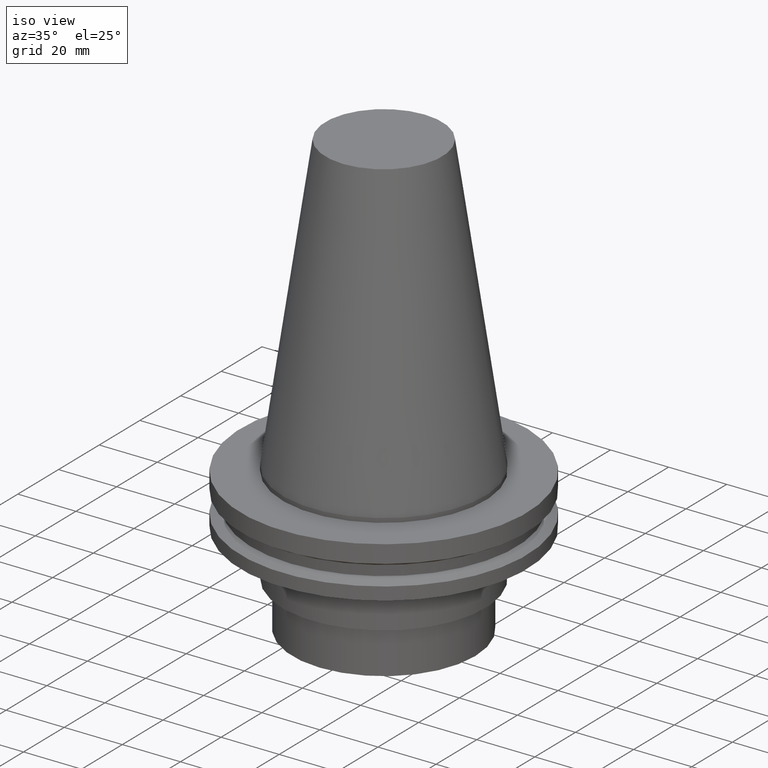
[diagram: clean part render]
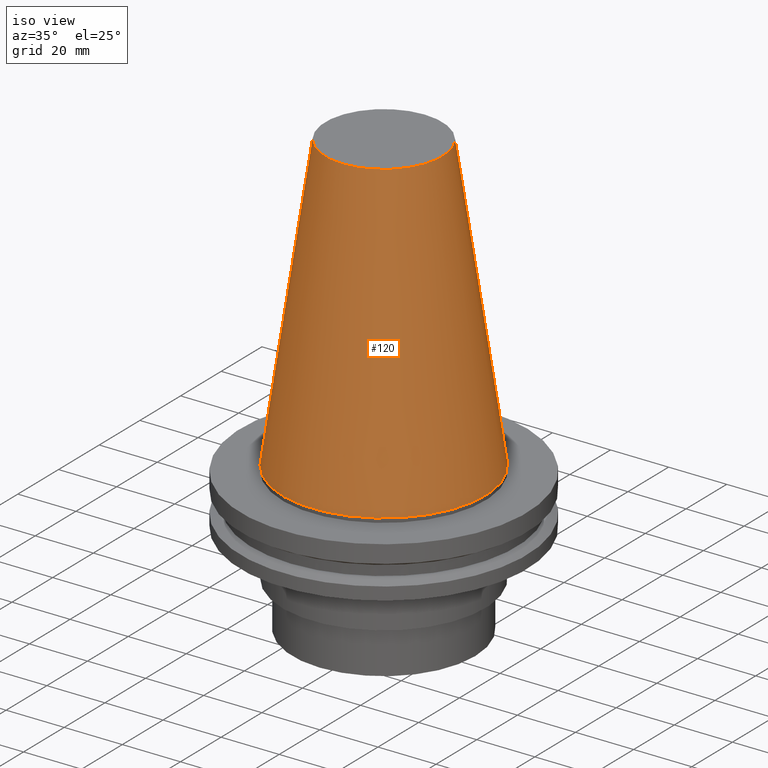
[diagram: tour spotlight — one face highlighted and labeled with its STEP entity id]
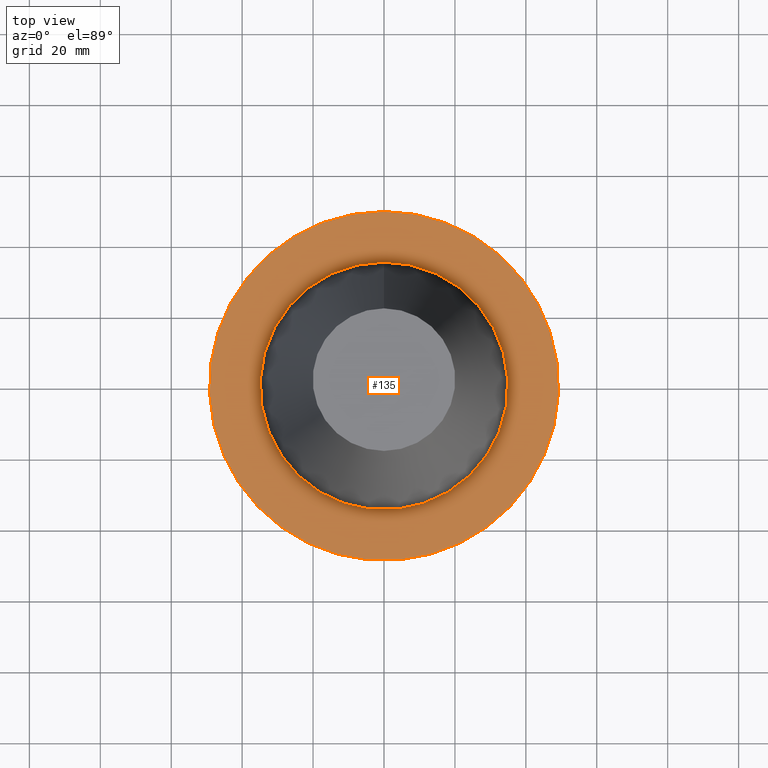
[diagram: tour spotlight — one face highlighted and labeled with its STEP entity id]
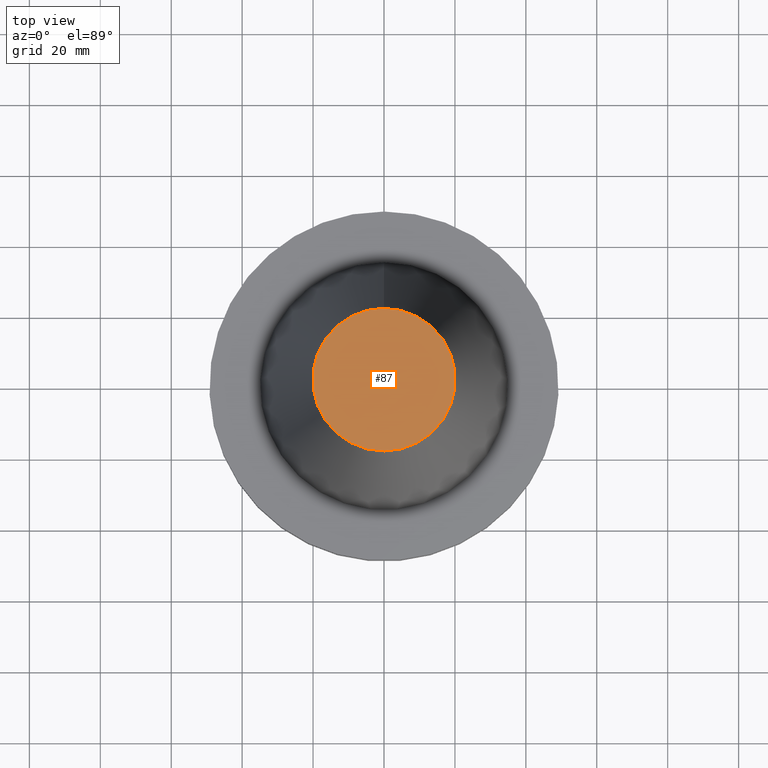
[diagram: tour spotlight — one face highlighted and labeled with its STEP entity id]
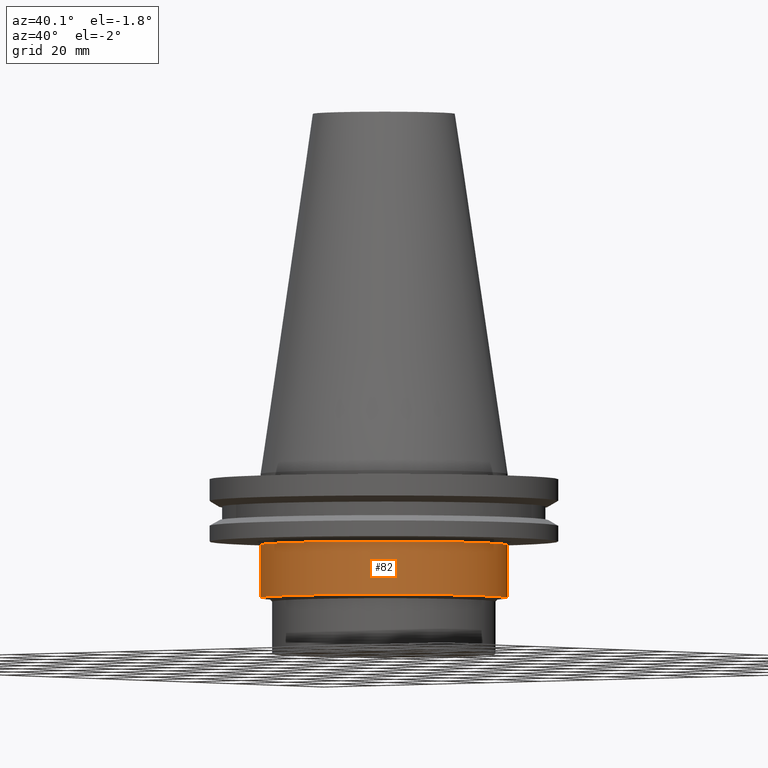
[diagram: tour spotlight — one face highlighted and labeled with its STEP entity id]
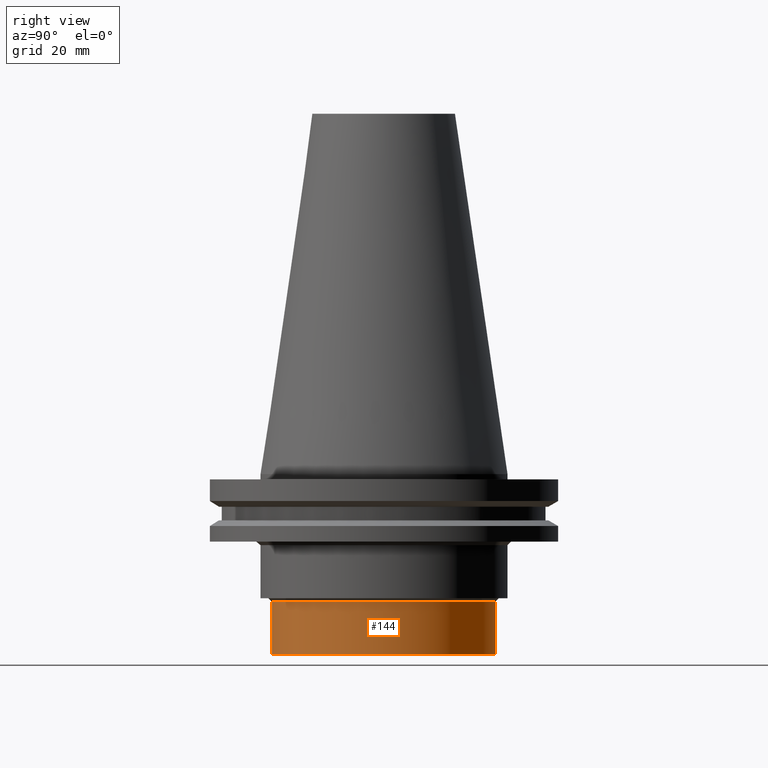
[diagram: tour spotlight — one face highlighted and labeled with its STEP entity id]
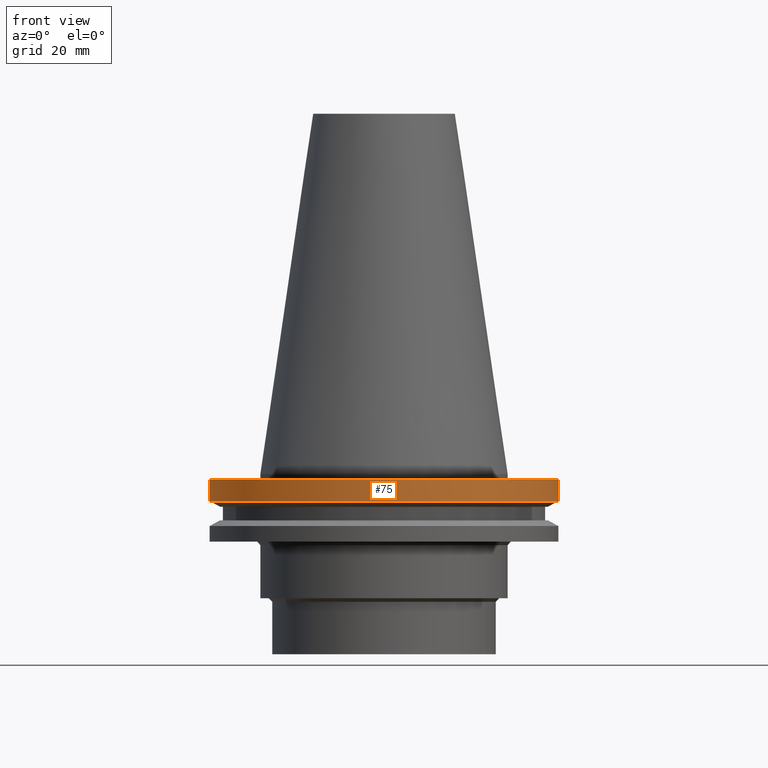
[diagram: tour spotlight — one face highlighted and labeled with its STEP entity id]
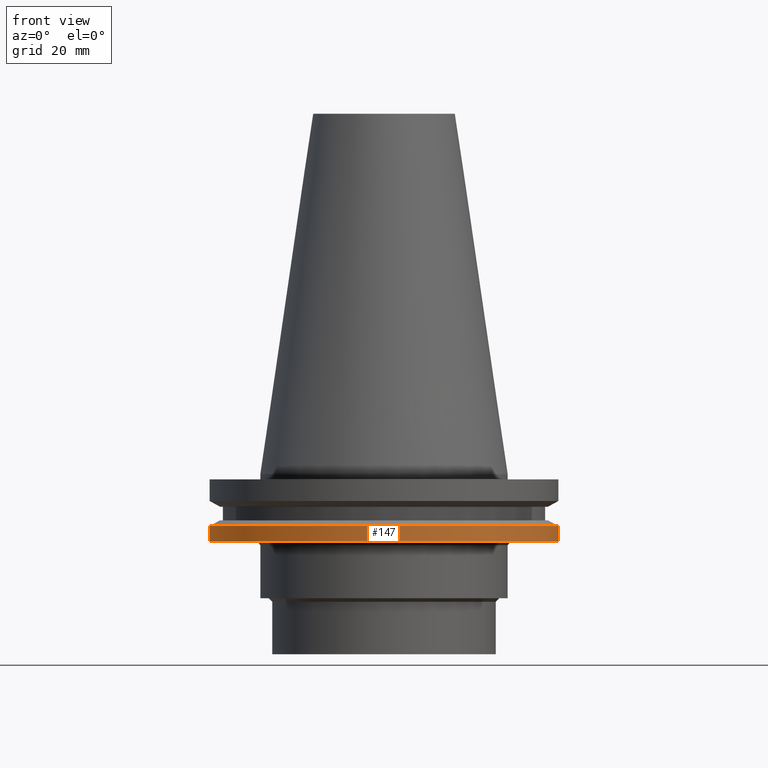
[diagram: tour spotlight — one face highlighted and labeled with its STEP entity id]
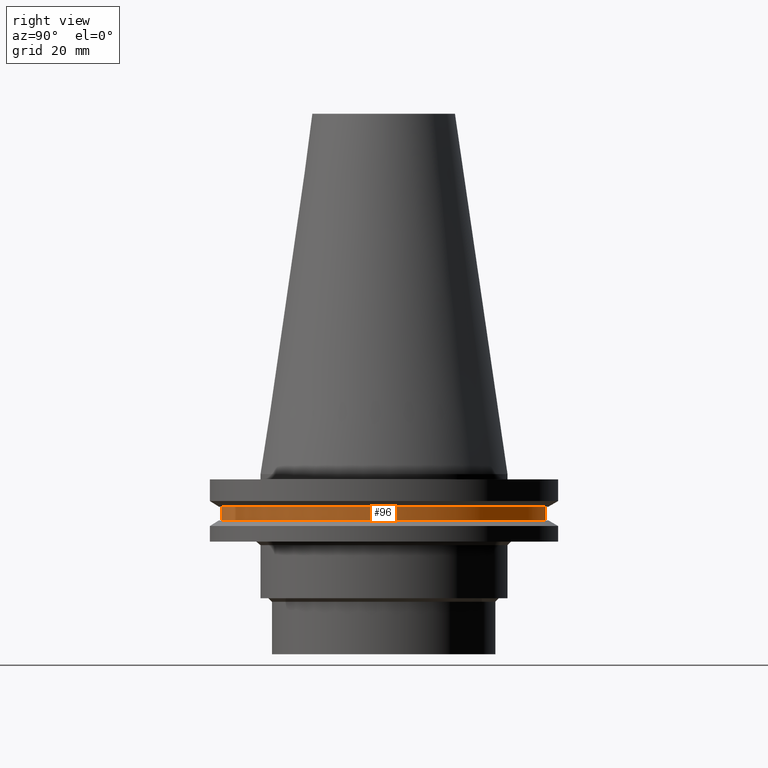
[diagram: tour spotlight — one face highlighted and labeled with its STEP entity id]
A machine part: a face-by-face anatomy tour. The part has 18 B-rep faces; the first image is the clean iso view, then the 8 largest visible faces are spotlighted one at a time (largest first), each with its STEP entity span.

Face 1 — iso view, entity #120. In plain terms, the highlighted conical surface has half-angle 8.297 deg.
Definition (entity closure, byte-faithful):
#72=EDGE_CURVE('Unnamed[1]',#186,#186,#187,.T.);
#120=ADVANCED_FACE('Unnamed[1]',(#260,#261),#262,.T.);
#149=EDGE_CURVE('Unnamed[1]',#306,#306,#307,.T.);
#186=VERTEX_POINT('',#340);
#187=CIRCLE('',#341,34.925);
#260=FACE_BOUND('',#433,.T.);
#261=FACE_BOUND('',#434,.T.);
#262=CONICAL_SURFACE('',#435,27.5166666666666,0.144812498238938);
#306=VERTEX_POINT('',#489);
#307=CIRCLE('',#490,20.1083333333333);
#340=CARTESIAN_POINT('',(4.82986938111671E-029,34.925,-7.9153078510529E-013));
#341=AXIS2_PLACEMENT_3D('',#513,#514,#515);
#433=EDGE_LOOP('',(#596));
#434=EDGE_LOOP('',(#597));
#435=AXIS2_PLACEMENT_3D('',#598,#599,#600);
#489=CARTESIAN_POINT('',(-6.22120573966855E-015,20.1083333333332,101.6));
#490=AXIS2_PLACEMENT_3D('',#647,#648,#649);
#513=CARTESIAN_POINT('',(5.04695054463486E-029,2.84372472727522E-014,-8.24229573481716E-013));
#514=DIRECTION('',(6.12323399573677E-017,9.31673031619414E-016,-1.0));
#515=DIRECTION('',(-6.18756725319993E-032,1.0,9.31673031619414E-016));
#596=ORIENTED_EDGE('',*,*,#72,.F.);
#597=ORIENTED_EDGE('',*,*,#149,.T.);
#598=CARTESIAN_POINT('',(-3.11060286983425E-015,-1.88917427335138E-014,50.7999999999996));
#599=DIRECTION('',(6.12323399573677E-017,9.31673031619389E-016,-1.0));
#600=DIRECTION('',(-6.18756725319968E-032,1.0,9.31673031619389E-016));
#647=CARTESIAN_POINT('',(-6.22120573966855E-015,-6.62207327397798E-014,101.6));
#648=DIRECTION('',(6.12323399573677E-017,9.31673031619385E-016,-1.0));
#649=DIRECTION('',(-6.18756725319991E-032,1.0,9.31673031619385E-016));

Face 2 — top view, entity #135. In plain terms, the highlighted planar face has unit normal (-0, -0, 1).
Definition (entity closure, byte-faithful):
#109=EDGE_CURVE('Unnamed[1]',#244,#244,#245,.T.);
#117=EDGE_CURVE('Unnamed[1]',#256,#256,#257,.T.);
#135=ADVANCED_FACE('Unnamed[1]',(#284,#285),#286,.T.);
#244=VERTEX_POINT('',#413);
#245=CIRCLE('',#414,34.9249999999999);
#256=VERTEX_POINT('',#428);
#257=CIRCLE('',#429,49.2124999999999);
#284=FACE_OUTER_BOUND('',#463,.T.);
#285=FACE_BOUND('',#464,.T.);
#286=PLANE('',#465);
#413=CARTESIAN_POINT('',(9.18485099360509E-017,34.925,-1.49999999999999));
#414=AXIS2_PLACEMENT_3D('',#578,#579,#580);
#428=CARTESIAN_POINT('',(9.18485099360508E-017,49.2124999999999,-1.49999999999999));
#429=AXIS2_PLACEMENT_3D('',#592,#593,#594);
#463=EDGE_LOOP('',(#623));
#464=EDGE_LOOP('',(#624));
#465=AXIS2_PLACEMENT_3D('',#625,#626,#627);
#578=CARTESIAN_POINT('',(9.18485099360532E-017,2.98347568201806E-014,-1.50000000000003));
#579=DIRECTION('',(6.12323399573677E-017,9.31673031619392E-016,-1.0));
#580=DIRECTION('',(-6.18756725319994E-032,1.0,9.31673031619392E-016));
#592=CARTESIAN_POINT('',(9.18485099360541E-017,2.98347568201806E-014,-1.50000000000004));
#593=DIRECTION('',(6.12323399573677E-017,9.31673031619397E-016,-1.0));
#594=DIRECTION('',(-6.18756725319978E-032,1.0,9.31673031619397E-016));
#623=ORIENTED_EDGE('',*,*,#117,.F.);
#624=ORIENTED_EDGE('',*,*,#109,.T.);
#625=CARTESIAN_POINT('',(9.18485099360509E-017,42.0687499999999,-1.49999999999999));
#626=DIRECTION('',(-6.12323399573677E-017,-1.22464679914735E-016,1.0));
#627=DIRECTION('',(1.23259516440783E-032,-1.0,-1.22464679914735E-016));

Face 3 — top view, entity #87. In plain terms, the highlighted planar face has unit normal (-0, -0, 1).
Definition (entity closure, byte-faithful):
#87=ADVANCED_FACE('Unnamed[1]',(#209),#210,.T.);
#149=EDGE_CURVE('Unnamed[1]',#306,#306,#307,.T.);
#209=FACE_OUTER_BOUND('',#369,.T.);
#210=PLANE('',#370);
#306=VERTEX_POINT('',#489);
#307=CIRCLE('',#490,20.1083333333333);
#369=EDGE_LOOP('',(#538));
#370=AXIS2_PLACEMENT_3D('',#539,#540,#541);
#489=CARTESIAN_POINT('',(-6.22120573966855E-015,20.1083333333332,101.6));
#490=AXIS2_PLACEMENT_3D('',#647,#648,#649);
#538=ORIENTED_EDGE('',*,*,#149,.F.);
#539=CARTESIAN_POINT('',(-6.22120573966855E-015,10.0541666666666,101.6));
#540=DIRECTION('',(-6.12323399573677E-017,-1.22464679914735E-016,1.0));
#541=DIRECTION('',(1.23259516440783E-032,-1.0,-1.22464679914735E-016));
#647=CARTESIAN_POINT('',(-6.22120573966855E-015,-6.62207327397798E-014,101.6));
#648=DIRECTION('',(6.12323399573677E-017,9.31673031619385E-016,-1.0));
#649=DIRECTION('',(-6.18756725319991E-032,1.0,9.31673031619385E-016));

Face 4 — auxiliary view, entity #82. In plain terms, the highlighted cylindrical surface (bore or boss wall) has radius 34.925 mm, axis along (0, 0, -1).
Definition (entity closure, byte-faithful):
#60=EDGE_CURVE('Unnamed[1]',#167,#167,#168,.T.);
#70=EDGE_CURVE('Unnamed[1]',#183,#183,#184,.T.);
#82=ADVANCED_FACE('Unnamed[1]',(#201,#202),#203,.T.);
#167=VERTEX_POINT('',#316);
#168=CIRCLE('',#317,34.9249999999998);
#183=VERTEX_POINT('',#336);
#184=CIRCLE('',#337,34.925);
#201=FACE_BOUND('',#359,.T.);
#202=FACE_BOUND('',#360,.T.);
#203=CYLINDRICAL_SURFACE('',#361,34.9249999999999);
#316=CARTESIAN_POINT('',(2.14313189850788E-015,34.9249999999999,-35.0000000000001));
#317=AXIS2_PLACEMENT_3D('',#492,#493,#494);
#336=CARTESIAN_POINT('',(1.22770841614522E-015,34.9250000000001,-20.05));
#337=AXIS2_PLACEMENT_3D('',#510,#511,#512);
#359=EDGE_LOOP('',(#529));
#360=EDGE_LOOP('',(#530));
#361=AXIS2_PLACEMENT_3D('',#531,#532,#533);
#492=CARTESIAN_POINT('',(2.14313189850788E-015,6.10458033794307E-014,-35.0000000000002));
#493=DIRECTION('',(6.12323399573676E-017,9.31673031619395E-016,-1.0));
#494=DIRECTION('',(-6.18756725319996E-032,1.0,9.31673031619395E-016));
#510=CARTESIAN_POINT('',(1.22770841614522E-015,4.71172915567205E-014,-20.05));
#511=DIRECTION('',(6.12323399573677E-017,9.31673031619413E-016,-1.0));
#512=DIRECTION('',(-6.18756725319993E-032,1.0,9.31673031619413E-016));
#529=ORIENTED_EDGE('',*,*,#60,.F.);
#530=ORIENTED_EDGE('',*,*,#70,.T.);
#531=CARTESIAN_POINT('',(1.68542015732655E-015,5.40815474680756E-014,-27.5250000000001));
#532=DIRECTION('',(6.12323399573677E-017,9.31673031619392E-016,-1.0));
#533=DIRECTION('',(-6.18756725319994E-032,1.0,9.31673031619392E-016));

Face 5 — right view, entity #144. In plain terms, the highlighted cylindrical surface (bore or boss wall) has radius 31.5 mm, axis along (0, 0, -1).
Definition (entity closure, byte-faithful):
#127=EDGE_CURVE('Unnamed[1]',#272,#272,#273,.T.);
#129=EDGE_CURVE('Unnamed[1]',#275,#275,#276,.T.);
#144=ADVANCED_FACE('Unnamed[1]',(#297,#298),#299,.T.);
#272=VERTEX_POINT('',#448);
#273=CIRCLE('',#449,31.4999999999999);
#275=VERTEX_POINT('',#452);
#276=CIRCLE('',#453,31.4999999999999);
#297=FACE_BOUND('',#478,.T.);
#298=FACE_BOUND('',#479,.T.);
#299=CYLINDRICAL_SURFACE('',#480,31.4999999999999);
#448=CARTESIAN_POINT('',(2.20436423846524E-015,31.5,-36.0000000000001));
#449=AXIS2_PLACEMENT_3D('',#610,#611,#612);
#452=CARTESIAN_POINT('',(3.11060286983428E-015,31.5,-50.8));
#453=AXIS2_PLACEMENT_3D('',#613,#614,#615);
#478=EDGE_LOOP('',(#636));
#479=EDGE_LOOP('',(#637));
#480=AXIS2_PLACEMENT_3D('',#638,#639,#640);
#610=CARTESIAN_POINT('',(2.20436423846524E-015,6.197747641105E-014,-36.0000000000001));
#611=DIRECTION('',(6.12323399573677E-017,9.31673031619413E-016,-1.0));
#612=DIRECTION('',(-6.1875672532001E-032,1.0,9.31673031619413E-016));
#613=CARTESIAN_POINT('',(3.11060286983428E-015,7.57662372790171E-014,-50.8));
#614=DIRECTION('',(6.12323399573677E-017,9.31673031619414E-016,-1.0));
#615=DIRECTION('',(-6.18756725319997E-032,1.0,9.31673031619414E-016));
#636=ORIENTED_EDGE('',*,*,#129,.F.);
#637=ORIENTED_EDGE('',*,*,#127,.T.);
#638=CARTESIAN_POINT('',(2.65748355414976E-015,6.88718568450336E-014,-43.4000000000001));
#639=DIRECTION('',(6.12323399573677E-017,9.31673031619413E-016,-1.0));
#640=DIRECTION('',(-6.18756725319996E-032,1.0,9.31673031619413E-016));

Face 6 — front view, entity #75. In plain terms, the highlighted cylindrical surface (bore or boss wall) has radius 49.2125 mm, axis along (0, 0, -1).
Definition (entity closure, byte-faithful):
#75=ADVANCED_FACE('Unnamed[1]',(#190,#191),#192,.T.);
#77=EDGE_CURVE('Unnamed[1]',#194,#194,#195,.T.);
#117=EDGE_CURVE('Unnamed[1]',#256,#256,#257,.T.);
#190=FACE_BOUND('',#345,.T.);
#191=FACE_BOUND('',#346,.T.);
#192=CYLINDRICAL_SURFACE('',#347,49.2124999999999);
#194=VERTEX_POINT('',#350);
#195=CIRCLE('',#351,49.2125);
#256=VERTEX_POINT('',#428);
#257=CIRCLE('',#429,49.2124999999999);
#345=EDGE_LOOP('',(#517));
#346=EDGE_LOOP('',(#518));
#347=AXIS2_PLACEMENT_3D('',#519,#520,#521);
#350=CARTESIAN_POINT('',(4.65059621976208E-016,49.2125,-7.59500000000002));
#351=AXIS2_PLACEMENT_3D('',#522,#523,#524);
#428=CARTESIAN_POINT('',(9.18485099360508E-017,49.2124999999999,-1.49999999999999));
#429=AXIS2_PLACEMENT_3D('',#592,#593,#594);
#517=ORIENTED_EDGE('',*,*,#77,.F.);
#518=ORIENTED_EDGE('',*,*,#117,.T.);
#519=CARTESIAN_POINT('',(2.78454065956133E-016,3.26740303840407E-014,-4.54750000000006));
#520=DIRECTION('',(6.12323399573677E-017,9.31673031619397E-016,-1.0));
#521=DIRECTION('',(-6.18756725319995E-032,1.0,9.31673031619397E-016));
#522=CARTESIAN_POINT('',(4.65059621976212E-016,3.55133039479009E-014,-7.59500000000007));
#523=DIRECTION('',(6.12323399573677E-017,9.31673031619395E-016,-1.0));
#524=DIRECTION('',(-6.18756725319995E-032,1.0,9.31673031619395E-016));
#592=CARTESIAN_POINT('',(9.18485099360541E-017,2.98347568201806E-014,-1.50000000000004));
#593=DIRECTION('',(6.12323399573677E-017,9.31673031619397E-016,-1.0));
#594=DIRECTION('',(-6.18756725319978E-032,1.0,9.31673031619397E-016));

Face 7 — front view, entity #147. In plain terms, the highlighted cylindrical surface (bore or boss wall) has radius 49.2125 mm, axis along (0, 0, -1).
Definition (entity closure, byte-faithful):
#84=EDGE_CURVE('Unnamed[1]',#205,#205,#206,.T.);
#91=EDGE_CURVE('Unnamed[1]',#215,#215,#216,.T.);
#147=ADVANCED_FACE('Unnamed[1]',(#302,#303),#304,.T.);
#205=VERTEX_POINT('',#364);
#206=CIRCLE('',#365,49.2124999999999);
#215=VERTEX_POINT('',#377);
#216=CIRCLE('',#378,49.2124999999999);
#302=FACE_BOUND('',#484,.T.);
#303=FACE_BOUND('',#485,.T.);
#304=CYLINDRICAL_SURFACE('',#486,49.2124999999999);
#364=CARTESIAN_POINT('',(8.96747618675648E-016,49.2124999999999,-14.645));
#365=AXIS2_PLACEMENT_3D('',#534,#535,#536);
#377=CARTESIAN_POINT('',(1.16647607618786E-015,49.2124999999999,-19.0500000000001));
#378=AXIS2_PLACEMENT_3D('',#545,#546,#547);
#484=EDGE_LOOP('',(#642));
#485=EDGE_LOOP('',(#643));
#486=AXIS2_PLACEMENT_3D('',#644,#645,#646);
#534=CARTESIAN_POINT('',(8.96747618675651E-016,4.20815988208176E-014,-14.645));
#535=DIRECTION('',(6.12323399573677E-017,9.31673031619398E-016,-1.0));
#536=DIRECTION('',(-6.18756725319996E-032,1.0,9.31673031619398E-016));
#545=CARTESIAN_POINT('',(1.16647607618786E-015,4.61856185251012E-014,-19.0500000000001));
#546=DIRECTION('',(6.12323399573677E-017,9.31673031619398E-016,-1.0));
#547=DIRECTION('',(-6.18756725319996E-032,1.0,9.31673031619398E-016));
#642=ORIENTED_EDGE('',*,*,#91,.F.);
#643=ORIENTED_EDGE('',*,*,#84,.T.);
#644=CARTESIAN_POINT('',(1.03161184743176E-015,4.41336086729594E-014,-16.8475000000001));
#645=DIRECTION('',(6.12323399573677E-017,9.31673031619398E-016,-1.0));
#646=DIRECTION('',(-6.18756725319996E-032,1.0,9.31673031619398E-016));

Face 8 — right view, entity #96. In plain terms, the highlighted cylindrical surface (bore or boss wall) has radius 45.645 mm, axis along (0, 0, -1).
Definition (entity closure, byte-faithful):
#79=EDGE_CURVE('Unnamed[1]',#197,#197,#198,.T.);
#96=ADVANCED_FACE('Unnamed[1]',(#222,#223),#224,.T.);
#125=EDGE_CURVE('Unnamed[1]',#269,#269,#270,.T.);
#197=VERTEX_POINT('',#354);
#198=CIRCLE('',#355,45.6449999999999);
#222=FACE_BOUND('',#386,.T.);
#223=FACE_BOUND('',#387,.T.);
#224=CYLINDRICAL_SURFACE('',#388,45.6449999999999);
#269=VERTEX_POINT('',#444);
#270=CIRCLE('',#445,45.6449999999999);
#354=CARTESIAN_POINT('',(5.63337527607778E-016,45.6449999999999,-9.19999999999993));
#355=AXIS2_PLACEMENT_3D('',#525,#526,#527);
#386=EDGE_LOOP('',(#552));
#387=EDGE_LOOP('',(#553));
#388=AXIS2_PLACEMENT_3D('',#554,#555,#556);
#444=CARTESIAN_POINT('',(7.98469713044071E-016,45.6449999999999,-13.04));
#445=AXIS2_PLACEMENT_3D('',#607,#608,#609);
#525=CARTESIAN_POINT('',(5.6333752760778E-016,3.70086391636499E-014,-9.19999999999997));
#526=DIRECTION('',(6.12323399573677E-017,9.31673031619402E-016,-1.0));
#527=DIRECTION('',(-6.1875672531998E-032,1.0,9.31673031619402E-016));
#552=ORIENTED_EDGE('',*,*,#125,.F.);
#553=ORIENTED_EDGE('',*,*,#79,.T.);
#554=CARTESIAN_POINT('',(6.80903620325927E-016,3.87974513843592E-014,-11.12));
#555=DIRECTION('',(6.12323399573677E-017,9.31673031619402E-016,-1.0));
#556=DIRECTION('',(-6.1875672531998E-032,1.0,9.31673031619402E-016));
#607=CARTESIAN_POINT('',(7.98469713044074E-016,4.05862636050685E-014,-13.04));
#608=DIRECTION('',(6.12323399573677E-017,9.31673031619402E-016,-1.0));
#609=DIRECTION('',(-6.1875672531998E-032,1.0,9.31673031619402E-016));